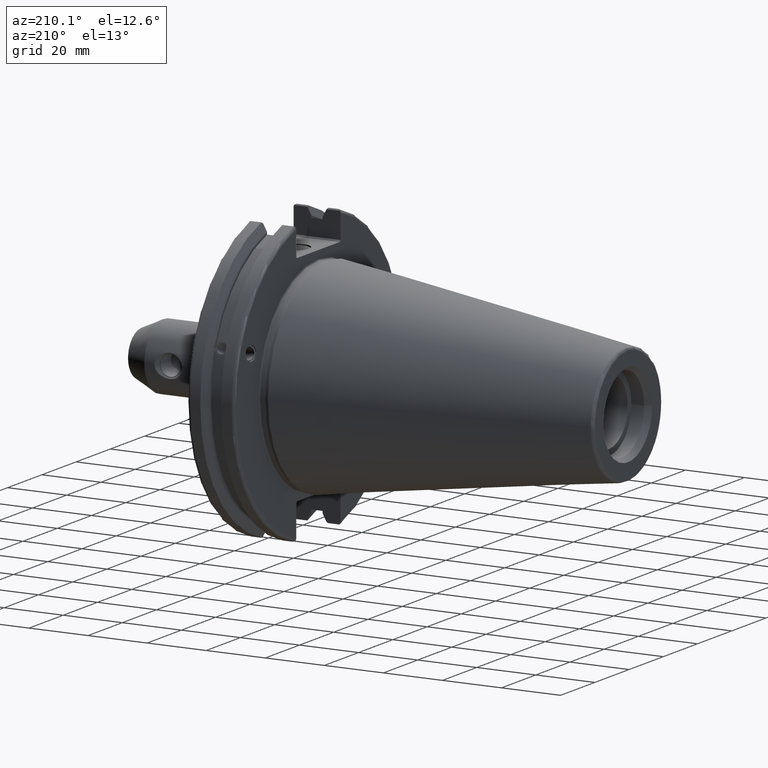
[diagram: clean part render]
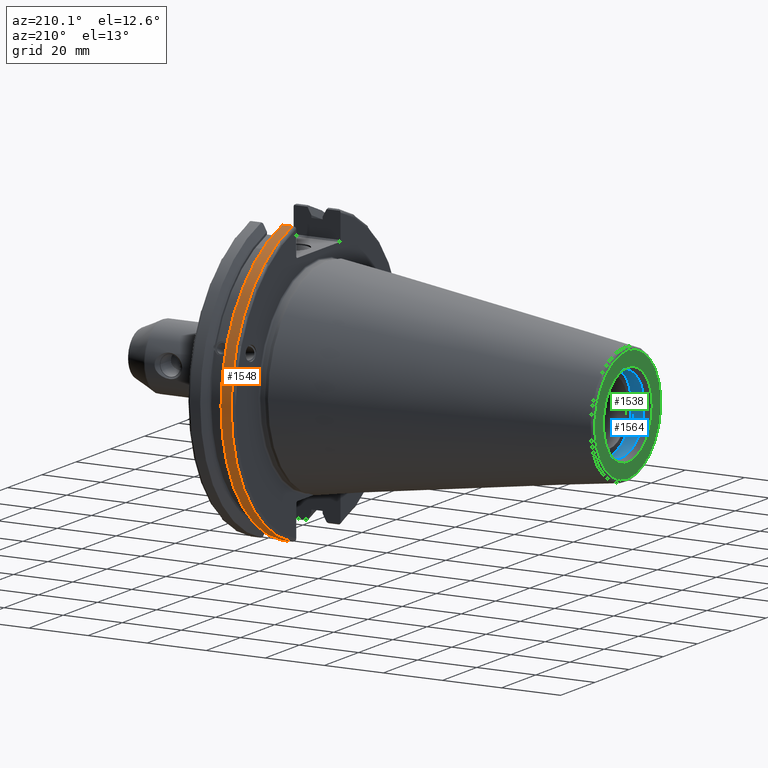
[diagram: same view with three faces highlighted in distinct colors, each labeled with its STEP entity id]
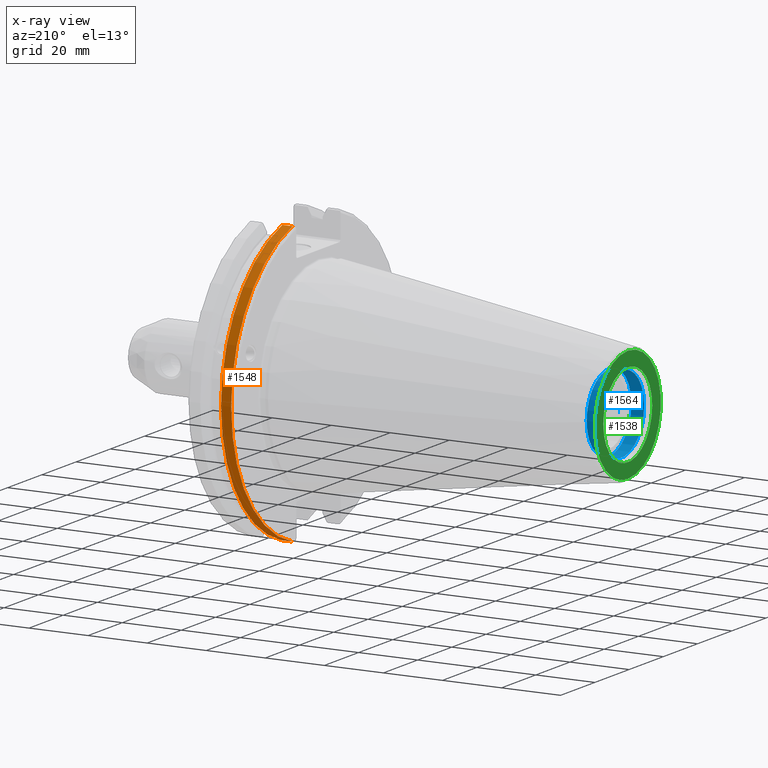
[diagram: x-ray of the same camera — body ghosted, the three highlighted faces saturated]
A machine part, auxiliary view with three faces highlighted in distinct colors.
The next image is the same camera in x-ray (body ghosted, the three faces saturated) — at least one of them is partly hidden behind the body in this view.
Their STEP definitions:

[orange] entity #1548 — the highlighted cylindrical surface (partial cylindrical patch) has radius 49.2125 mm, axis along (1, 0, 0).
#63=CYLINDRICAL_SURFACE('',#1726,49.2125);
#192=FACE_OUTER_BOUND('',#297,.T.);
#297=EDGE_LOOP('',(#1382,#1383,#1384,#1385));
#435=LINE('',#3116,#527);
#446=LINE('',#3158,#538);
#527=VECTOR('',#2069,10.);
#538=VECTOR('',#2116,10.);
#605=CIRCLE('',#1707,49.2125);
#612=CIRCLE('',#1727,49.2125);
#763=VERTEX_POINT('',#3089);
#764=VERTEX_POINT('',#3098);
#765=VERTEX_POINT('',#3115);
#772=VERTEX_POINT('',#3157);
#967=EDGE_CURVE('',#763,#764,#605,.T.);
#970=EDGE_CURVE('',#764,#765,#435,.T.);
#989=EDGE_CURVE('',#772,#763,#446,.T.);
#990=EDGE_CURVE('',#765,#772,#612,.T.);
#1382=ORIENTED_EDGE('',*,*,#967,.F.);
#1383=ORIENTED_EDGE('',*,*,#989,.F.);
#1384=ORIENTED_EDGE('',*,*,#990,.F.);
#1385=ORIENTED_EDGE('',*,*,#970,.F.);
#1548=ADVANCED_FACE('',(#192),#63,.T.);
#1707=AXIS2_PLACEMENT_3D('',#3099,#2065,#2066);
#1726=AXIS2_PLACEMENT_3D('',#3156,#2114,#2115);
#1727=AXIS2_PLACEMENT_3D('',#3159,#2117,#2118);
#2065=DIRECTION('center_axis',(-1.,0.,0.));
#2066=DIRECTION('ref_axis',(0.,1.,-6.12323399573677E-17));
#2069=DIRECTION('',(1.,0.,0.));
#2114=DIRECTION('center_axis',(1.,0.,0.));
#2115=DIRECTION('ref_axis',(0.,1.,0.));
#2116=DIRECTION('',(-1.,0.,0.));
#2117=DIRECTION('center_axis',(1.,0.,0.));
#2118=DIRECTION('ref_axis',(0.,0.,-1.));
#3089=CARTESIAN_POINT('',(4.175,13.4317035994433,47.3440544806494));
#3098=CARTESIAN_POINT('',(4.175,13.4317035994433,-47.3440544806494));
#3099=CARTESIAN_POINT('Origin',(4.175,0.,0.));
#3115=CARTESIAN_POINT('',(7.60799096595127,13.4317035994433,-47.3440544806494));
#3116=CARTESIAN_POINT('',(5.39149548297564,13.4317035994433,-47.3440544806494));
#3156=CARTESIAN_POINT('Origin',(5.39149548297564,0.,0.));
#3157=CARTESIAN_POINT('',(7.60799096595127,13.4317035994433,47.3440544806494));
#3158=CARTESIAN_POINT('',(5.39149548297564,13.4317035994433,47.3440544806494));
#3159=CARTESIAN_POINT('Origin',(7.60799096595127,0.,0.));

[blue] entity #1564 — the highlighted cylindrical surface (bore or boss wall) has radius 13.1 mm, axis along (1, 0, 0).
#68=CYLINDRICAL_SURFACE('',#1751,13.1);
#208=FACE_OUTER_BOUND('',#314,.T.);
#314=EDGE_LOOP('',(#1454,#1455,#1456,#1457));
#450=LINE('',#3196,#542);
#542=VECTOR('',#2172,13.1);
#621=CIRCLE('',#1752,13.1);
#622=CIRCLE('',#1753,13.1);
#776=VERTEX_POINT('',#3193);
#777=VERTEX_POINT('',#3195);
#1003=EDGE_CURVE('',#776,#776,#621,.T.);
#1004=EDGE_CURVE('',#776,#777,#450,.T.);
#1005=EDGE_CURVE('',#777,#777,#622,.T.);
#1454=ORIENTED_EDGE('',*,*,#1003,.T.);
#1455=ORIENTED_EDGE('',*,*,#1004,.T.);
#1456=ORIENTED_EDGE('',*,*,#1005,.F.);
#1457=ORIENTED_EDGE('',*,*,#1004,.F.);
#1564=ADVANCED_FACE('',(#208),#68,.F.);
#1751=AXIS2_PLACEMENT_3D('',#3192,#2168,#2169);
#1752=AXIS2_PLACEMENT_3D('',#3194,#2170,#2171);
#1753=AXIS2_PLACEMENT_3D('',#3197,#2173,#2174);
#2168=DIRECTION('center_axis',(1.,0.,0.));
#2169=DIRECTION('ref_axis',(0.,1.,0.));
#2170=DIRECTION('center_axis',(1.,0.,0.));
#2171=DIRECTION('ref_axis',(0.,0.,-1.));
#2172=DIRECTION('',(-1.,0.,0.));
#2173=DIRECTION('center_axis',(1.,0.,0.));
#2174=DIRECTION('ref_axis',(0.,0.,-1.));
#3192=CARTESIAN_POINT('Origin',(-97.396594833006,0.,0.));
#3193=CARTESIAN_POINT('',(-95.25,-13.1,-1.60428730688303E-15));
#3194=CARTESIAN_POINT('Origin',(-95.25,0.,0.));
#3195=CARTESIAN_POINT('',(-99.5431896660119,-13.1,-1.60428730688303E-15));
#3196=CARTESIAN_POINT('',(-97.396594833006,-13.1,-1.60428730688303E-15));
#3197=CARTESIAN_POINT('Origin',(-99.5431896660119,0.,0.));

[green] entity #1538 — the highlighted planar face has unit normal (-1, 0, 0).
#87=FACE_BOUND('',#287,.T.);
#109=PLANE('',#1714);
#182=FACE_OUTER_BOUND('',#286,.T.);
#286=EDGE_LOOP('',(#1335));
#287=EDGE_LOOP('',(#1336));
#609=CIRCLE('',#1713,19.2435889303637);
#610=CIRCLE('',#1715,14.2875);
#768=VERTEX_POINT('',#3125);
#769=VERTEX_POINT('',#3129);
#975=EDGE_CURVE('',#768,#768,#609,.T.);
#976=EDGE_CURVE('',#769,#769,#610,.T.);
#1335=ORIENTED_EDGE('',*,*,#975,.F.);
#1336=ORIENTED_EDGE('',*,*,#976,.T.);
#1538=ADVANCED_FACE('',(#182,#87),#109,.T.);
#1713=AXIS2_PLACEMENT_3D('',#3127,#2078,#2079);
#1714=AXIS2_PLACEMENT_3D('',#3128,#2080,#2081);
#1715=AXIS2_PLACEMENT_3D('',#3130,#2082,#2083);
#2078=DIRECTION('center_axis',(1.,0.,0.));
#2079=DIRECTION('ref_axis',(0.,-1.,1.83697019872103E-16));
#2080=DIRECTION('center_axis',(-1.,0.,0.));
#2081=DIRECTION('ref_axis',(0.,0.,1.));
#2082=DIRECTION('center_axis',(1.,0.,0.));
#2083=DIRECTION('ref_axis',(0.,0.,-1.));
#3125=CARTESIAN_POINT('',(-101.6,-2.35665995876774E-15,19.2435889303637));
#3127=CARTESIAN_POINT('Origin',(-101.6,0.,0.));
#3128=CARTESIAN_POINT('Origin',(-101.6,20.1083333333333,0.));
#3129=CARTESIAN_POINT('',(-101.6,-14.2875,-1.74971411428178E-15));
#3130=CARTESIAN_POINT('Origin',(-101.6,0.,0.));